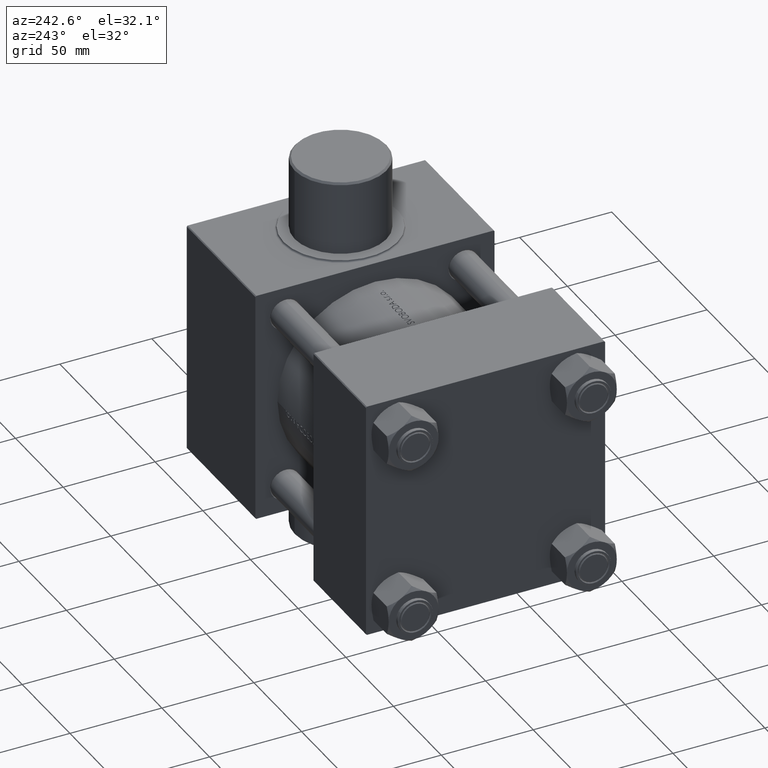
[diagram: clean part render]
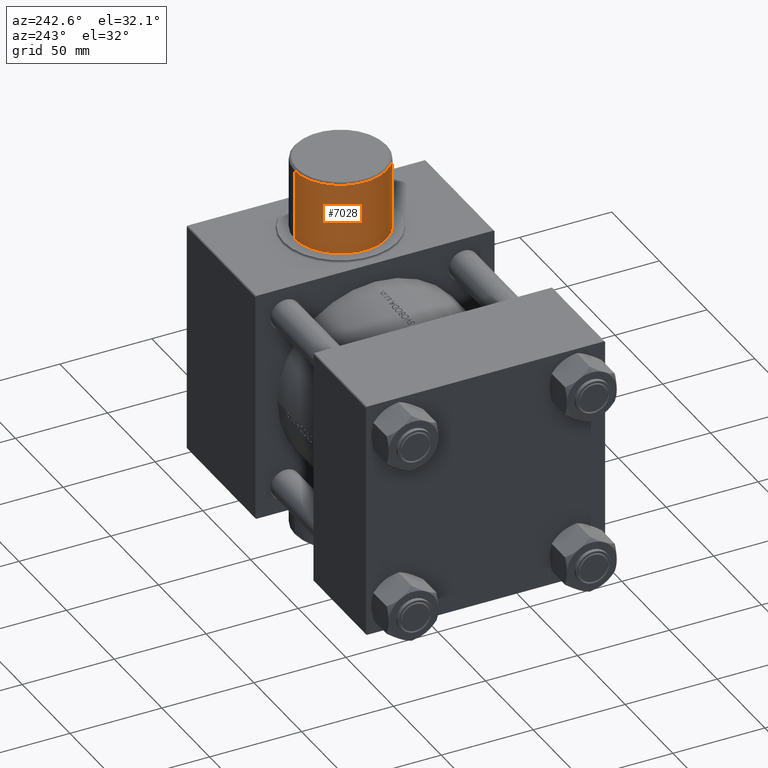
[diagram: same view with one face highlighted and labeled with its STEP entity id]
A machine part, auxiliary view. The second image highlights one B-rep face of the part: STEP entity #7028.
In plain terms, the highlighted cylindrical surface (partial cylindrical patch) has radius 25 mm, axis along (0, 0, -1).
Its self-contained STEP definition (entity closure, byte-faithful):
#1034 = EDGE_CURVE ( 'NONE', #19264, #14174, #1871, .T. ) ;
#1144 = DIRECTION ( 'NONE',  ( -0.000000000000000000, 1.000000000000000000, 8.673617379884037937E-17 ) ) ;
#1364 = LINE ( 'NONE', #19594, #13929 ) ;
#1871 = CIRCLE ( 'NONE', #19286, 25.00000000000000355 ) ;
#5918 = ORIENTED_EDGE ( 'NONE', *, *, #18352, .T. ) ;
#6835 = ORIENTED_EDGE ( 'NONE', *, *, #28163, .T. ) ;
#6896 = FACE_OUTER_BOUND ( 'NONE', #9355, .T. ) ;
#7028 = ADVANCED_FACE ( 'NONE', ( #6896 ), #21351, .T. ) ;
#7127 = DIRECTION ( 'NONE',  ( 0.000000000000000000, 0.000000000000000000, 1.000000000000000000 ) ) ;
#9355 = EDGE_LOOP ( 'NONE', ( #16429, #11961, #6835, #5918 ) ) ;
#10321 = CIRCLE ( 'NONE', #15602, 25.00000000000000355 ) ;
#11607 = CARTESIAN_POINT ( 'NONE',  ( 152.0000000000000000, -103.5000000000000000, 25.00000000000000000 ) ) ;
#11961 = ORIENTED_EDGE ( 'NONE', *, *, #1034, .T. ) ;
#12515 = CARTESIAN_POINT ( 'NONE',  ( 152.0000000000000000, -104.5000000000000142, 25.00000000000000000 ) ) ;
#13929 = VECTOR ( 'NONE', #16049, 1000.000000000000000 ) ;
#14174 = VERTEX_POINT ( 'NONE', #11607 ) ;
#15602 = AXIS2_PLACEMENT_3D ( 'NONE', #20987, #42560, #35463 ) ;
#16049 = DIRECTION ( 'NONE',  ( -0.000000000000000000, 1.000000000000000000, 8.673617379884037937E-17 ) ) ;
#16069 = LINE ( 'NONE', #12515, #40102 ) ;
#16429 = ORIENTED_EDGE ( 'NONE', *, *, #43275, .F. ) ;
#18352 = EDGE_CURVE ( 'NONE', #44272, #21317, #10321, .T. ) ;
#19072 = CARTESIAN_POINT ( 'NONE',  ( 152.0000000000000000, -64.50000000000000000, 25.00000000000000711 ) ) ;
#19264 = VERTEX_POINT ( 'NONE', #39712 ) ;
#19286 = AXIS2_PLACEMENT_3D ( 'NONE', #41255, #37713, #19677 ) ;
#19594 = CARTESIAN_POINT ( 'NONE',  ( 152.0000000000000000, -104.5000000000000142, -25.00000000000000711 ) ) ;
#19677 = DIRECTION ( 'NONE',  ( 0.000000000000000000, 0.000000000000000000, -1.000000000000000000 ) ) ;
#20987 = CARTESIAN_POINT ( 'NONE',  ( 152.0000000000000000, -64.50000000000000000, -8.673617379884004657E-17 ) ) ;
#21317 = VERTEX_POINT ( 'NONE', #21743 ) ;
#21351 = CYLINDRICAL_SURFACE ( 'NONE', #45799, 25.00000000000000355 ) ;
#21743 = CARTESIAN_POINT ( 'NONE',  ( 152.0000000000000000, -64.50000000000000000, -25.00000000000000355 ) ) ;
#28163 = EDGE_CURVE ( 'NONE', #14174, #44272, #16069, .T. ) ;
#35463 = DIRECTION ( 'NONE',  ( 0.000000000000000000, 0.000000000000000000, -1.000000000000000000 ) ) ;
#37713 = DIRECTION ( 'NONE',  ( 0.000000000000000000, 1.000000000000000000, 8.673617379884030542E-17 ) ) ;
#39618 = CARTESIAN_POINT ( 'NONE',  ( 152.0000000000000000, -104.5000000000000142, -3.556183125752455332E-15 ) ) ;
#39712 = CARTESIAN_POINT ( 'NONE',  ( 152.0000000000000000, -103.5000000000000000, -25.00000000000000711 ) ) ;
#40102 = VECTOR ( 'NONE', #1144, 1000.000000000000000 ) ;
#41255 = CARTESIAN_POINT ( 'NONE',  ( 152.0000000000000000, -103.5000000000000000, -3.469446951953613400E-15 ) ) ;
#42560 = DIRECTION ( 'NONE',  ( 0.000000000000000000, -1.000000000000000000, -8.673617379884036705E-17 ) ) ;
#43275 = EDGE_CURVE ( 'NONE', #19264, #21317, #1364, .T. ) ;
#44272 = VERTEX_POINT ( 'NONE', #19072 ) ;
#45799 = AXIS2_PLACEMENT_3D ( 'NONE', #39618, #46718, #7127 ) ;
#46718 = DIRECTION ( 'NONE',  ( -0.000000000000000000, 1.000000000000000000, 8.673617379884037937E-17 ) ) ;